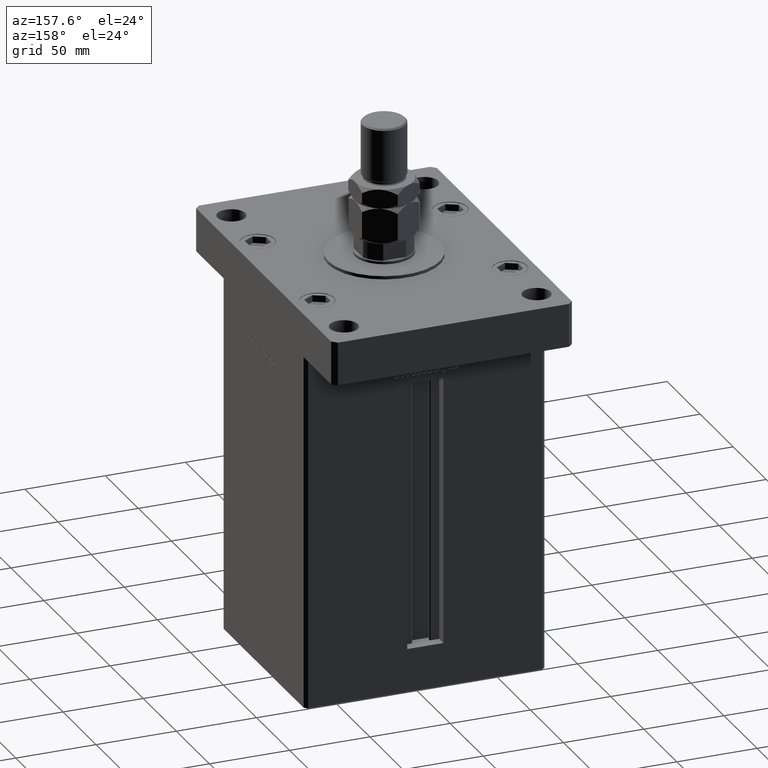
[diagram: clean part render]
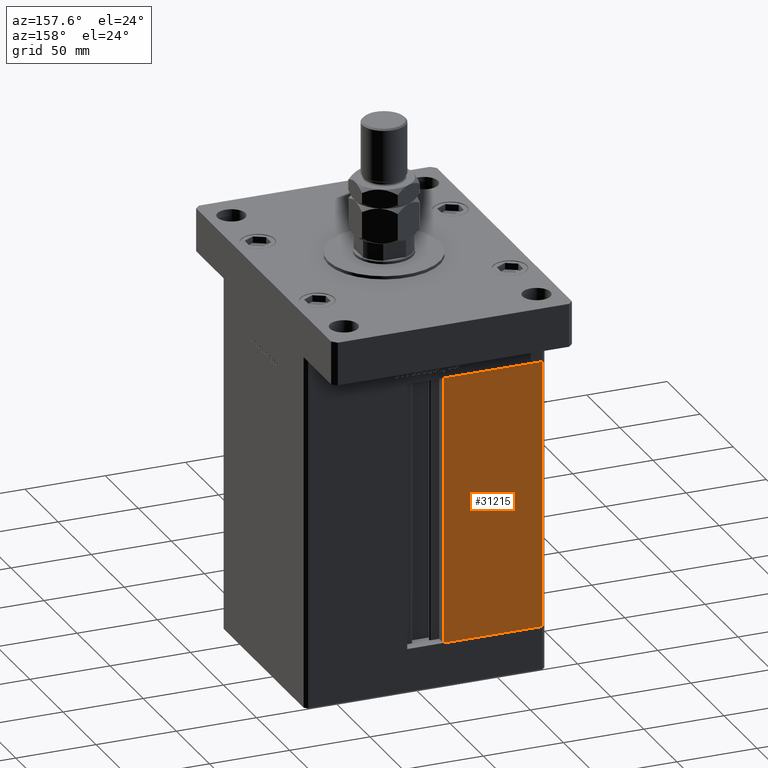
[diagram: same view with one face highlighted and labeled with its STEP entity id]
A machine part, auxiliary view. The second image highlights one B-rep face of the part: STEP entity #31215.
In plain terms, the highlighted planar face has unit normal (-0, -1, 0).
Its self-contained STEP definition (entity closure, byte-faithful):
#1734 = DIRECTION ( 'NONE',  ( -0.000000000000000000, -0.000000000000000000, 1.000000000000000000 ) ) ;
#3621 = VERTEX_POINT ( 'NONE', #33955 ) ;
#4067 = EDGE_CURVE ( 'NONE', #45815, #31219, #5656, .T. ) ;
#4153 = ORIENTED_EDGE ( 'NONE', *, *, #30440, .T. ) ;
#5656 = LINE ( 'NONE', #22933, #31214 ) ;
#6021 = CARTESIAN_POINT ( 'NONE',  ( -11.25000000000000178, 62.49999999999999289, 167.0000000000000000 ) ) ;
#6862 = AXIS2_PLACEMENT_3D ( 'NONE', #6021, #22498, #40076 ) ;
#7351 = CARTESIAN_POINT ( 'NONE',  ( -73.00000000000001421, 62.50000000000000000, 0.000000000000000000 ) ) ;
#9677 = PLANE ( 'NONE',  #6862 ) ;
#10517 = CARTESIAN_POINT ( 'NONE',  ( -11.25000000000000178, 62.49999999999999289, 0.000000000000000000 ) ) ;
#10815 = DIRECTION ( 'NONE',  ( 1.000000000000000000, 0.000000000000000000, 0.000000000000000000 ) ) ;
#10921 = EDGE_CURVE ( 'NONE', #3621, #24099, #14237, .T. ) ;
#11291 = VECTOR ( 'NONE', #10815, 1000.000000000000000 ) ;
#14237 = LINE ( 'NONE', #43569, #14330 ) ;
#14330 = VECTOR ( 'NONE', #47765, 1000.000000000000000 ) ;
#22270 = DIRECTION ( 'NONE',  ( -1.000000000000000000, 1.123707514802790025E-16, 0.000000000000000000 ) ) ;
#22498 = DIRECTION ( 'NONE',  ( -1.123707514802790271E-16, -1.000000000000000000, 0.000000000000000000 ) ) ;
#22933 = CARTESIAN_POINT ( 'NONE',  ( -11.25000000000000178, 62.49999999999999289, 0.000000000000000000 ) ) ;
#23141 = EDGE_CURVE ( 'NONE', #45815, #24099, #44036, .T. ) ;
#23371 = CARTESIAN_POINT ( 'NONE',  ( -11.25000000000000178, 62.49999999999999289, 167.0000000000000000 ) ) ;
#24099 = VERTEX_POINT ( 'NONE', #7351 ) ;
#28430 = ORIENTED_EDGE ( 'NONE', *, *, #23141, .T. ) ;
#28688 = LINE ( 'NONE', #23371, #11291 ) ;
#30440 = EDGE_CURVE ( 'NONE', #3621, #31219, #28688, .T. ) ;
#31215 = ADVANCED_FACE ( 'NONE', ( #52101 ), #9677, .F. ) ;
#31214 = VECTOR ( 'NONE', #1734, 1000.000000000000000 ) ;
#31219 = VERTEX_POINT ( 'NONE', #48184 ) ;
#31633 = CARTESIAN_POINT ( 'NONE',  ( -11.25000000000000178, 62.49999999999999289, 0.000000000000000000 ) ) ;
#33955 = CARTESIAN_POINT ( 'NONE',  ( -73.00000000000001421, 62.50000000000000000, 167.0000000000000000 ) ) ;
#37327 = EDGE_LOOP ( 'NONE', ( #4153, #51418, #28430, #40260 ) ) ;
#40076 = DIRECTION ( 'NONE',  ( 1.000000000000000000, -1.123707514802790271E-16, 0.000000000000000000 ) ) ;
#40260 = ORIENTED_EDGE ( 'NONE', *, *, #10921, .F. ) ;
#43569 = CARTESIAN_POINT ( 'NONE',  ( -73.00000000000001421, 62.50000000000000000, 167.0000000000000000 ) ) ;
#44036 = LINE ( 'NONE', #10517, #45935 ) ;
#45815 = VERTEX_POINT ( 'NONE', #31633 ) ;
#45935 = VECTOR ( 'NONE', #22270, 1000.000000000000000 ) ;
#47765 = DIRECTION ( 'NONE',  ( -0.000000000000000000, -0.000000000000000000, -1.000000000000000000 ) ) ;
#48184 = CARTESIAN_POINT ( 'NONE',  ( -11.25000000000000178, 62.49999999999999289, 166.9999999999999432 ) ) ;
#51418 = ORIENTED_EDGE ( 'NONE', *, *, #4067, .F. ) ;
#52101 = FACE_OUTER_BOUND ( 'NONE', #37327, .T. ) ;